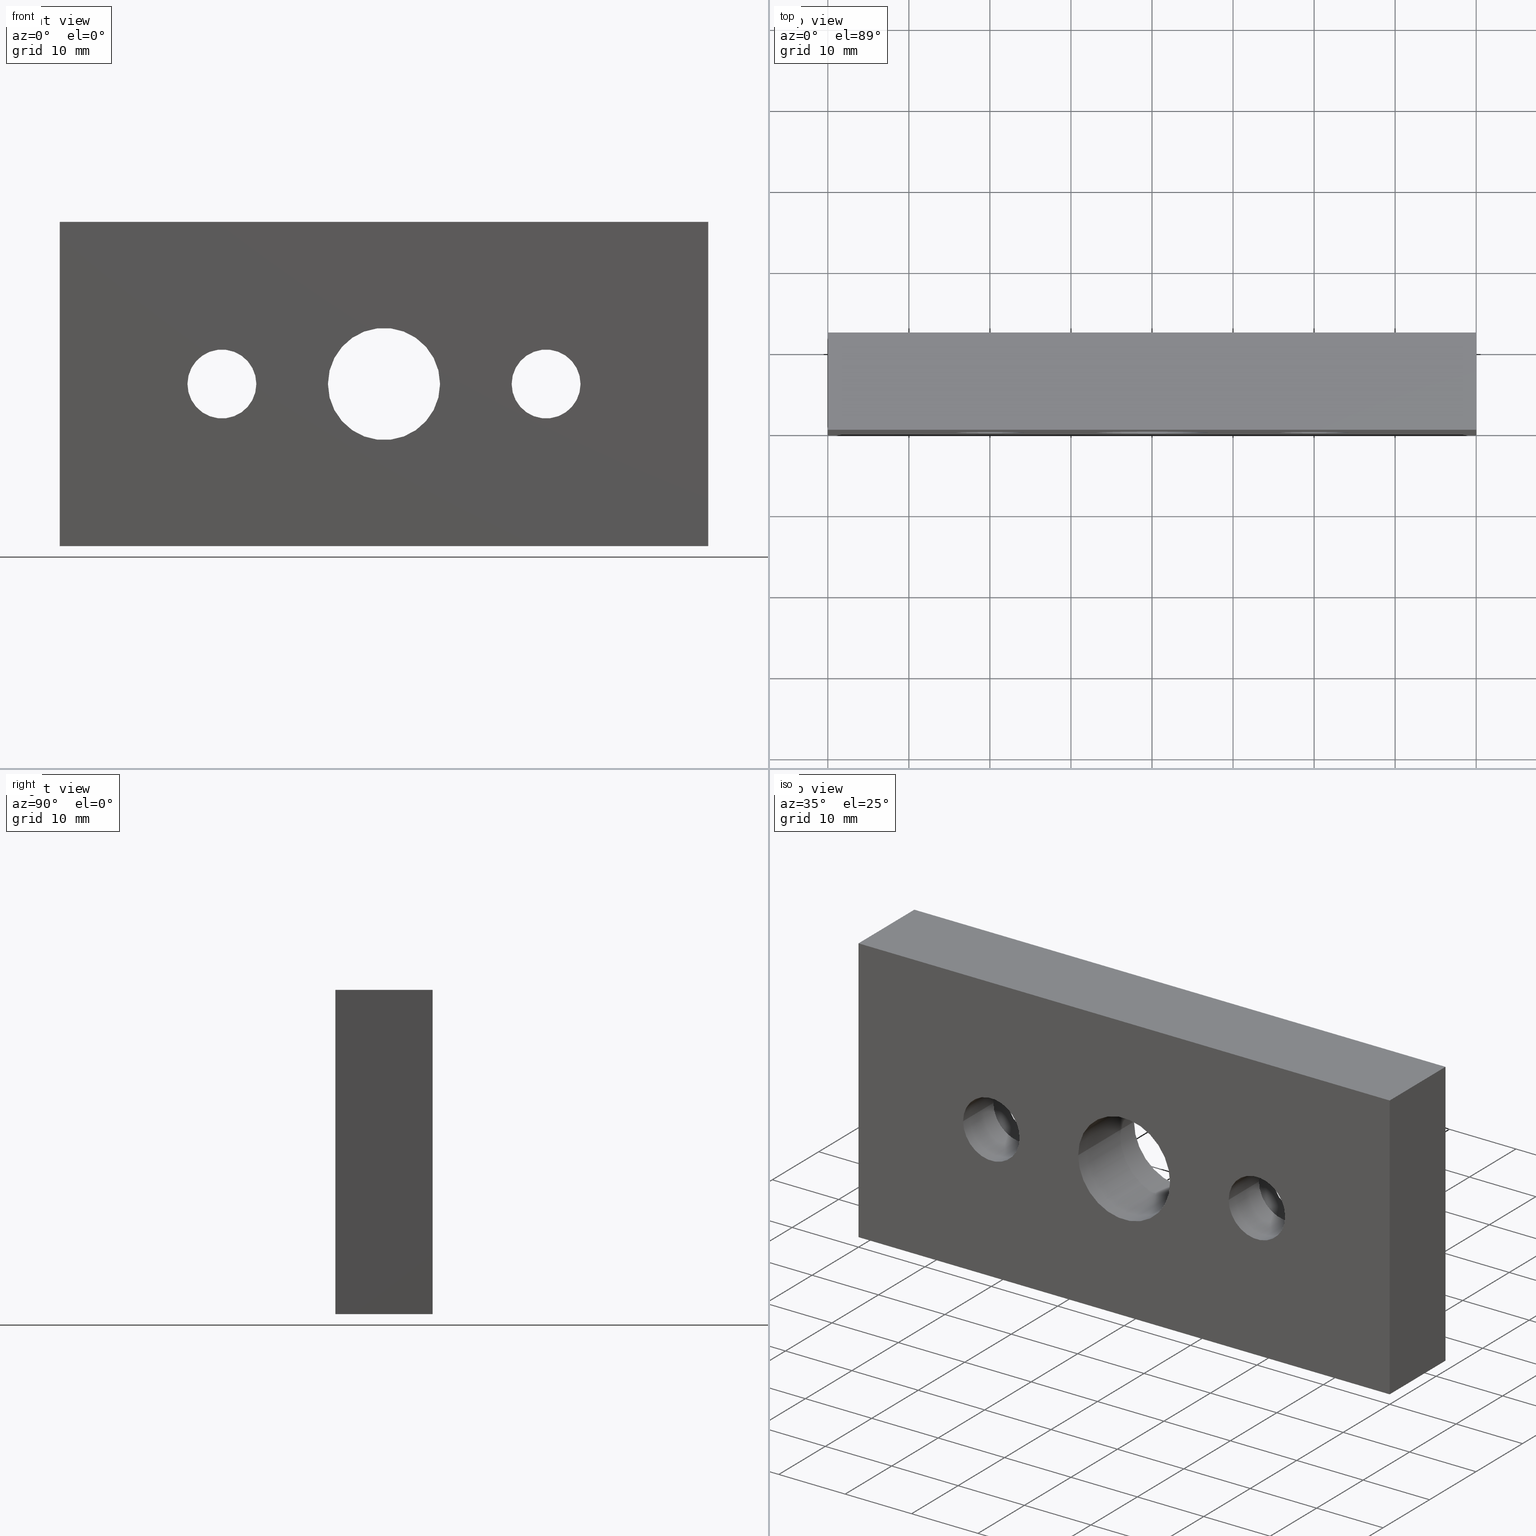
[diagram: canonical four-view strip — front | top / right | iso, engineering-drawing reading convention]
A machine part, canonical four-view strip (front | top / right | iso — engineering-drawing reading convention). The complete STEP part file that produces these views, byte-faithful:
ISO-10303-21;
HEADER;
/* Generated by software containing ST-Developer
 * from STEP Tools, Inc. (www.steptools.com) 
 */

FILE_DESCRIPTION(
/* description */ ('PIASTRA 40x80 SP.12 ALL. '),
/* implementation_level */ '2;1');

FILE_NAME(
/* name */ 
'Q:\\Catalogo\\2_Accessori Dierre\\Per Download Web e catalogo cartace
o\\CATALOGO PIEDI E SOSTEGNI\\PAGINA 46\\DPSXX0001716.stp',
/* time_stamp */ '2019-06-07T18:50:04+02:00',
/* author */ ('fzagni'),
/* organization */ (''),
/* preprocessor_version */ 'ST-DEVELOPER v17.2',
/* originating_system */ 'Autodesk Inventor 2019',
/* authorisation */ '');

FILE_SCHEMA (('AUTOMOTIVE_DESIGN { 1 0 10303 214 3 1 1 }'));
ENDSEC;

DATA;
#10=MECHANICAL_DESIGN_GEOMETRIC_PRESENTATION_REPRESENTATION('',(#13),#446);
#11=SHAPE_REPRESENTATION_RELATIONSHIP('SRR','None',#453,#12);
#12=ADVANCED_BREP_SHAPE_REPRESENTATION('',(#14),#445);
#13=STYLED_ITEM('',(#462),#14);
#14=MANIFOLD_SOLID_BREP('Solido1',#251);
#15=LINE('',#387,#32);
#16=LINE('',#390,#33);
#17=LINE('',#404,#34);
#18=LINE('',#407,#35);
#19=LINE('',#415,#36);
#20=LINE('',#420,#37);
#21=LINE('',#422,#38);
#22=LINE('',#424,#39);
#23=LINE('',#425,#40);
#24=LINE('',#428,#41);
#25=LINE('',#430,#42);
#26=LINE('',#431,#43);
#27=LINE('',#434,#44);
#28=LINE('',#436,#45);
#29=LINE('',#437,#46);
#30=LINE('',#439,#47);
#31=LINE('',#440,#48);
#32=VECTOR('',#315,6.75);
#33=VECTOR('',#318,4.25);
#34=VECTOR('',#335,6.75);
#35=VECTOR('',#338,4.25);
#36=VECTOR('',#347,6.9175);
#37=VECTOR('',#352,10.);
#38=VECTOR('',#353,10.);
#39=VECTOR('',#354,10.);
#40=VECTOR('',#355,10.);
#41=VECTOR('',#358,10.);
#42=VECTOR('',#359,10.);
#43=VECTOR('',#360,10.);
#44=VECTOR('',#363,10.);
#45=VECTOR('',#364,10.);
#46=VECTOR('',#365,10.);
#47=VECTOR('',#368,10.);
#48=VECTOR('',#369,10.);
#49=CYLINDRICAL_SURFACE('',#275,6.75);
#50=CYLINDRICAL_SURFACE('',#278,4.25);
#51=CYLINDRICAL_SURFACE('',#284,6.75);
#52=CYLINDRICAL_SURFACE('',#287,4.25);
#53=CYLINDRICAL_SURFACE('',#289,6.9175);
#54=FACE_BOUND('',#76,.T.);
#55=FACE_BOUND('',#80,.T.);
#56=FACE_BOUND('',#89,.T.);
#57=FACE_BOUND('',#90,.T.);
#58=FACE_BOUND('',#91,.T.);
#59=FACE_BOUND('',#93,.T.);
#60=FACE_BOUND('',#94,.T.);
#61=FACE_BOUND('',#95,.T.);
#62=FACE_OUTER_BOUND('',#75,.T.);
#63=FACE_OUTER_BOUND('',#77,.T.);
#64=FACE_OUTER_BOUND('',#78,.T.);
#65=FACE_OUTER_BOUND('',#79,.T.);
#66=FACE_OUTER_BOUND('',#81,.T.);
#67=FACE_OUTER_BOUND('',#82,.T.);
#68=FACE_OUTER_BOUND('',#83,.T.);
#69=FACE_OUTER_BOUND('',#84,.T.);
#70=FACE_OUTER_BOUND('',#85,.T.);
#71=FACE_OUTER_BOUND('',#86,.T.);
#72=FACE_OUTER_BOUND('',#87,.T.);
#73=FACE_OUTER_BOUND('',#88,.T.);
#74=FACE_OUTER_BOUND('',#92,.T.);
#75=EDGE_LOOP('',(#166,#167));
#76=EDGE_LOOP('',(#168));
#77=EDGE_LOOP('',(#169,#170,#171,#172,#173,#174));
#78=EDGE_LOOP('',(#175,#176,#177,#178));
#79=EDGE_LOOP('',(#179,#180));
#80=EDGE_LOOP('',(#181));
#81=EDGE_LOOP('',(#182,#183,#184,#185,#186,#187));
#82=EDGE_LOOP('',(#188,#189,#190,#191));
#83=EDGE_LOOP('',(#192,#193,#194,#195,#196));
#84=EDGE_LOOP('',(#197,#198,#199,#200));
#85=EDGE_LOOP('',(#201,#202,#203,#204));
#86=EDGE_LOOP('',(#205,#206,#207,#208));
#87=EDGE_LOOP('',(#209,#210,#211,#212));
#88=EDGE_LOOP('',(#213,#214,#215,#216));
#89=EDGE_LOOP('',(#217));
#90=EDGE_LOOP('',(#218));
#91=EDGE_LOOP('',(#219));
#92=EDGE_LOOP('',(#220,#221,#222,#223));
#93=EDGE_LOOP('',(#224,#225));
#94=EDGE_LOOP('',(#226,#227));
#95=EDGE_LOOP('',(#228,#229));
#96=CIRCLE('',#272,6.75);
#97=CIRCLE('',#273,6.75);
#98=CIRCLE('',#274,4.25);
#99=CIRCLE('',#276,6.75);
#100=CIRCLE('',#277,6.75);
#101=CIRCLE('',#279,4.25);
#102=CIRCLE('',#281,6.75);
#103=CIRCLE('',#282,6.75);
#104=CIRCLE('',#283,4.25);
#105=CIRCLE('',#285,6.75);
#106=CIRCLE('',#286,6.75);
#107=CIRCLE('',#288,4.25);
#108=CIRCLE('',#290,6.9175);
#109=CIRCLE('',#291,6.9175);
#110=CIRCLE('',#292,6.9175);
#111=VERTEX_POINT('',#376);
#112=VERTEX_POINT('',#377);
#113=VERTEX_POINT('',#380);
#114=VERTEX_POINT('',#383);
#115=VERTEX_POINT('',#384);
#116=VERTEX_POINT('',#389);
#117=VERTEX_POINT('',#393);
#118=VERTEX_POINT('',#394);
#119=VERTEX_POINT('',#397);
#120=VERTEX_POINT('',#400);
#121=VERTEX_POINT('',#401);
#122=VERTEX_POINT('',#406);
#123=VERTEX_POINT('',#410);
#124=VERTEX_POINT('',#411);
#125=VERTEX_POINT('',#414);
#126=VERTEX_POINT('',#418);
#127=VERTEX_POINT('',#419);
#128=VERTEX_POINT('',#421);
#129=VERTEX_POINT('',#423);
#130=VERTEX_POINT('',#427);
#131=VERTEX_POINT('',#429);
#132=VERTEX_POINT('',#433);
#133=VERTEX_POINT('',#435);
#134=EDGE_CURVE('',#111,#112,#96,.T.);
#135=EDGE_CURVE('',#112,#111,#97,.T.);
#136=EDGE_CURVE('',#113,#113,#98,.T.);
#137=EDGE_CURVE('',#114,#115,#99,.T.);
#138=EDGE_CURVE('',#115,#114,#100,.T.);
#139=EDGE_CURVE('',#115,#112,#15,.T.);
#140=EDGE_CURVE('',#113,#116,#16,.T.);
#141=EDGE_CURVE('',#116,#116,#101,.T.);
#142=EDGE_CURVE('',#117,#118,#102,.T.);
#143=EDGE_CURVE('',#118,#117,#103,.T.);
#144=EDGE_CURVE('',#119,#119,#104,.T.);
#145=EDGE_CURVE('',#120,#121,#105,.T.);
#146=EDGE_CURVE('',#121,#120,#106,.T.);
#147=EDGE_CURVE('',#121,#118,#17,.T.);
#148=EDGE_CURVE('',#119,#122,#18,.T.);
#149=EDGE_CURVE('',#122,#122,#107,.T.);
#150=EDGE_CURVE('',#123,#124,#108,.T.);
#151=EDGE_CURVE('',#124,#123,#109,.T.);
#152=EDGE_CURVE('',#124,#125,#19,.T.);
#153=EDGE_CURVE('',#125,#125,#110,.T.);
#154=EDGE_CURVE('',#126,#127,#20,.T.);
#155=EDGE_CURVE('',#126,#128,#21,.T.);
#156=EDGE_CURVE('',#129,#128,#22,.T.);
#157=EDGE_CURVE('',#127,#129,#23,.T.);
#158=EDGE_CURVE('',#127,#130,#24,.T.);
#159=EDGE_CURVE('',#131,#129,#25,.T.);
#160=EDGE_CURVE('',#130,#131,#26,.T.);
#161=EDGE_CURVE('',#130,#132,#27,.T.);
#162=EDGE_CURVE('',#133,#131,#28,.T.);
#163=EDGE_CURVE('',#132,#133,#29,.T.);
#164=EDGE_CURVE('',#132,#126,#30,.T.);
#165=EDGE_CURVE('',#128,#133,#31,.T.);
#166=ORIENTED_EDGE('',*,*,#134,.T.);
#167=ORIENTED_EDGE('',*,*,#135,.T.);
#168=ORIENTED_EDGE('',*,*,#136,.F.);
#169=ORIENTED_EDGE('',*,*,#137,.F.);
#170=ORIENTED_EDGE('',*,*,#138,.F.);
#171=ORIENTED_EDGE('',*,*,#139,.T.);
#172=ORIENTED_EDGE('',*,*,#134,.F.);
#173=ORIENTED_EDGE('',*,*,#135,.F.);
#174=ORIENTED_EDGE('',*,*,#139,.F.);
#175=ORIENTED_EDGE('',*,*,#136,.T.);
#176=ORIENTED_EDGE('',*,*,#140,.T.);
#177=ORIENTED_EDGE('',*,*,#141,.F.);
#178=ORIENTED_EDGE('',*,*,#140,.F.);
#179=ORIENTED_EDGE('',*,*,#142,.T.);
#180=ORIENTED_EDGE('',*,*,#143,.T.);
#181=ORIENTED_EDGE('',*,*,#144,.F.);
#182=ORIENTED_EDGE('',*,*,#145,.F.);
#183=ORIENTED_EDGE('',*,*,#146,.F.);
#184=ORIENTED_EDGE('',*,*,#147,.T.);
#185=ORIENTED_EDGE('',*,*,#142,.F.);
#186=ORIENTED_EDGE('',*,*,#143,.F.);
#187=ORIENTED_EDGE('',*,*,#147,.F.);
#188=ORIENTED_EDGE('',*,*,#144,.T.);
#189=ORIENTED_EDGE('',*,*,#148,.T.);
#190=ORIENTED_EDGE('',*,*,#149,.F.);
#191=ORIENTED_EDGE('',*,*,#148,.F.);
#192=ORIENTED_EDGE('',*,*,#150,.F.);
#193=ORIENTED_EDGE('',*,*,#151,.F.);
#194=ORIENTED_EDGE('',*,*,#152,.T.);
#195=ORIENTED_EDGE('',*,*,#153,.F.);
#196=ORIENTED_EDGE('',*,*,#152,.F.);
#197=ORIENTED_EDGE('',*,*,#154,.F.);
#198=ORIENTED_EDGE('',*,*,#155,.T.);
#199=ORIENTED_EDGE('',*,*,#156,.F.);
#200=ORIENTED_EDGE('',*,*,#157,.F.);
#201=ORIENTED_EDGE('',*,*,#158,.F.);
#202=ORIENTED_EDGE('',*,*,#157,.T.);
#203=ORIENTED_EDGE('',*,*,#159,.F.);
#204=ORIENTED_EDGE('',*,*,#160,.F.);
#205=ORIENTED_EDGE('',*,*,#161,.F.);
#206=ORIENTED_EDGE('',*,*,#160,.T.);
#207=ORIENTED_EDGE('',*,*,#162,.F.);
#208=ORIENTED_EDGE('',*,*,#163,.F.);
#209=ORIENTED_EDGE('',*,*,#164,.F.);
#210=ORIENTED_EDGE('',*,*,#163,.T.);
#211=ORIENTED_EDGE('',*,*,#165,.F.);
#212=ORIENTED_EDGE('',*,*,#155,.F.);
#213=ORIENTED_EDGE('',*,*,#164,.T.);
#214=ORIENTED_EDGE('',*,*,#154,.T.);
#215=ORIENTED_EDGE('',*,*,#158,.T.);
#216=ORIENTED_EDGE('',*,*,#161,.T.);
#217=ORIENTED_EDGE('',*,*,#141,.T.);
#218=ORIENTED_EDGE('',*,*,#149,.T.);
#219=ORIENTED_EDGE('',*,*,#153,.T.);
#220=ORIENTED_EDGE('',*,*,#165,.T.);
#221=ORIENTED_EDGE('',*,*,#162,.T.);
#222=ORIENTED_EDGE('',*,*,#159,.T.);
#223=ORIENTED_EDGE('',*,*,#156,.T.);
#224=ORIENTED_EDGE('',*,*,#137,.T.);
#225=ORIENTED_EDGE('',*,*,#138,.T.);
#226=ORIENTED_EDGE('',*,*,#145,.T.);
#227=ORIENTED_EDGE('',*,*,#146,.T.);
#228=ORIENTED_EDGE('',*,*,#150,.T.);
#229=ORIENTED_EDGE('',*,*,#151,.T.);
#230=PLANE('',#271);
#231=PLANE('',#280);
#232=PLANE('',#293);
#233=PLANE('',#294);
#234=PLANE('',#295);
#235=PLANE('',#296);
#236=PLANE('',#297);
#237=PLANE('',#298);
#238=ADVANCED_FACE('',(#62,#54),#230,.T.);
#239=ADVANCED_FACE('',(#63),#49,.F.);
#240=ADVANCED_FACE('',(#64),#50,.F.);
#241=ADVANCED_FACE('',(#65,#55),#231,.T.);
#242=ADVANCED_FACE('',(#66),#51,.F.);
#243=ADVANCED_FACE('',(#67),#52,.F.);
#244=ADVANCED_FACE('',(#68),#53,.F.);
#245=ADVANCED_FACE('',(#69),#232,.T.);
#246=ADVANCED_FACE('',(#70),#233,.T.);
#247=ADVANCED_FACE('',(#71),#234,.T.);
#248=ADVANCED_FACE('',(#72),#235,.T.);
#249=ADVANCED_FACE('',(#73,#56,#57,#58),#236,.F.);
#250=ADVANCED_FACE('',(#74,#59,#60,#61),#237,.T.);
#251=CLOSED_SHELL('',(#238,#239,#240,#241,#242,#243,#244,#245,#246,#247,
#248,#249,#250));
#252=DERIVED_UNIT_ELEMENT(#254,1.);
#253=DERIVED_UNIT_ELEMENT(#448,3.);
#254=(
MASS_UNIT()
NAMED_UNIT(*)
SI_UNIT($,.GRAM.)
);
#255=DERIVED_UNIT((#252,#253));
#256=MEASURE_REPRESENTATION_ITEM('density measure',
POSITIVE_RATIO_MEASURE(2.7),#255);
#257=PROPERTY_DEFINITION_REPRESENTATION(#262,#259);
#258=PROPERTY_DEFINITION_REPRESENTATION(#263,#260);
#259=REPRESENTATION('material name',(#261),#445);
#260=REPRESENTATION('density',(#256),#445);
#261=DESCRIPTIVE_REPRESENTATION_ITEM('Alluminio 6060','Alluminio 6060');
#262=PROPERTY_DEFINITION('material property','material name',#455);
#263=PROPERTY_DEFINITION('material property','density of part',#455);
#264=DATE_TIME_ROLE('creation_date');
#265=APPLIED_DATE_AND_TIME_ASSIGNMENT(#266,#264,(#455));
#266=DATE_AND_TIME(#267,#268);
#267=CALENDAR_DATE(2014,7,8);
#268=LOCAL_TIME(8,52,1.,#269);
#269=COORDINATED_UNIVERSAL_TIME_OFFSET(0,0,.BEHIND.);
#270=AXIS2_PLACEMENT_3D('placement',#374,#299,#300);
#271=AXIS2_PLACEMENT_3D('',#375,#301,#302);
#272=AXIS2_PLACEMENT_3D('',#378,#303,#304);
#273=AXIS2_PLACEMENT_3D('',#379,#305,#306);
#274=AXIS2_PLACEMENT_3D('',#381,#307,#308);
#275=AXIS2_PLACEMENT_3D('',#382,#309,#310);
#276=AXIS2_PLACEMENT_3D('',#385,#311,#312);
#277=AXIS2_PLACEMENT_3D('',#386,#313,#314);
#278=AXIS2_PLACEMENT_3D('',#388,#316,#317);
#279=AXIS2_PLACEMENT_3D('',#391,#319,#320);
#280=AXIS2_PLACEMENT_3D('',#392,#321,#322);
#281=AXIS2_PLACEMENT_3D('',#395,#323,#324);
#282=AXIS2_PLACEMENT_3D('',#396,#325,#326);
#283=AXIS2_PLACEMENT_3D('',#398,#327,#328);
#284=AXIS2_PLACEMENT_3D('',#399,#329,#330);
#285=AXIS2_PLACEMENT_3D('',#402,#331,#332);
#286=AXIS2_PLACEMENT_3D('',#403,#333,#334);
#287=AXIS2_PLACEMENT_3D('',#405,#336,#337);
#288=AXIS2_PLACEMENT_3D('',#408,#339,#340);
#289=AXIS2_PLACEMENT_3D('',#409,#341,#342);
#290=AXIS2_PLACEMENT_3D('',#412,#343,#344);
#291=AXIS2_PLACEMENT_3D('',#413,#345,#346);
#292=AXIS2_PLACEMENT_3D('',#416,#348,#349);
#293=AXIS2_PLACEMENT_3D('',#417,#350,#351);
#294=AXIS2_PLACEMENT_3D('',#426,#356,#357);
#295=AXIS2_PLACEMENT_3D('',#432,#361,#362);
#296=AXIS2_PLACEMENT_3D('',#438,#366,#367);
#297=AXIS2_PLACEMENT_3D('',#441,#370,#371);
#298=AXIS2_PLACEMENT_3D('',#442,#372,#373);
#299=DIRECTION('axis',(0.,0.,1.));
#300=DIRECTION('refdir',(1.,0.,0.));
#301=DIRECTION('center_axis',(0.,1.,0.));
#302=DIRECTION('ref_axis',(1.,0.,0.));
#303=DIRECTION('center_axis',(0.,1.,0.));
#304=DIRECTION('ref_axis',(1.,0.,0.));
#305=DIRECTION('center_axis',(0.,1.,0.));
#306=DIRECTION('ref_axis',(1.,0.,0.));
#307=DIRECTION('center_axis',(0.,1.,0.));
#308=DIRECTION('ref_axis',(1.,0.,0.));
#309=DIRECTION('center_axis',(0.,1.,0.));
#310=DIRECTION('ref_axis',(1.,0.,0.));
#311=DIRECTION('center_axis',(0.,-1.,0.));
#312=DIRECTION('ref_axis',(1.,0.,0.));
#313=DIRECTION('center_axis',(0.,-1.,0.));
#314=DIRECTION('ref_axis',(1.,0.,0.));
#315=DIRECTION('',(0.,-1.,0.));
#316=DIRECTION('center_axis',(0.,1.,0.));
#317=DIRECTION('ref_axis',(1.,0.,0.));
#318=DIRECTION('',(0.,-1.,0.));
#319=DIRECTION('center_axis',(0.,1.,0.));
#320=DIRECTION('ref_axis',(1.,0.,0.));
#321=DIRECTION('center_axis',(0.,1.,0.));
#322=DIRECTION('ref_axis',(1.,0.,0.));
#323=DIRECTION('center_axis',(0.,1.,0.));
#324=DIRECTION('ref_axis',(1.,0.,0.));
#325=DIRECTION('center_axis',(0.,1.,0.));
#326=DIRECTION('ref_axis',(1.,0.,0.));
#327=DIRECTION('center_axis',(0.,1.,0.));
#328=DIRECTION('ref_axis',(1.,0.,0.));
#329=DIRECTION('center_axis',(0.,1.,0.));
#330=DIRECTION('ref_axis',(1.,0.,0.));
#331=DIRECTION('center_axis',(0.,-1.,0.));
#332=DIRECTION('ref_axis',(1.,0.,0.));
#333=DIRECTION('center_axis',(0.,-1.,0.));
#334=DIRECTION('ref_axis',(1.,0.,0.));
#335=DIRECTION('',(0.,-1.,0.));
#336=DIRECTION('center_axis',(0.,1.,0.));
#337=DIRECTION('ref_axis',(1.,0.,0.));
#338=DIRECTION('',(0.,-1.,0.));
#339=DIRECTION('center_axis',(0.,1.,0.));
#340=DIRECTION('ref_axis',(1.,0.,0.));
#341=DIRECTION('center_axis',(0.,1.,0.));
#342=DIRECTION('ref_axis',(1.,0.,0.));
#343=DIRECTION('center_axis',(0.,-1.,0.));
#344=DIRECTION('ref_axis',(1.,0.,0.));
#345=DIRECTION('center_axis',(0.,-1.,0.));
#346=DIRECTION('ref_axis',(1.,0.,0.));
#347=DIRECTION('',(0.,-1.,0.));
#348=DIRECTION('center_axis',(0.,1.,0.));
#349=DIRECTION('ref_axis',(1.,0.,0.));
#350=DIRECTION('center_axis',(-1.,0.,0.));
#351=DIRECTION('ref_axis',(0.,0.,1.));
#352=DIRECTION('',(0.,0.,-1.));
#353=DIRECTION('',(0.,1.,0.));
#354=DIRECTION('',(0.,0.,1.));
#355=DIRECTION('',(0.,1.,0.));
#356=DIRECTION('center_axis',(0.,0.,-1.));
#357=DIRECTION('ref_axis',(-1.,0.,0.));
#358=DIRECTION('',(1.,0.,0.));
#359=DIRECTION('',(-1.,0.,0.));
#360=DIRECTION('',(0.,1.,0.));
#361=DIRECTION('center_axis',(1.,0.,0.));
#362=DIRECTION('ref_axis',(0.,0.,-1.));
#363=DIRECTION('',(0.,0.,1.));
#364=DIRECTION('',(0.,0.,-1.));
#365=DIRECTION('',(0.,1.,0.));
#366=DIRECTION('center_axis',(0.,0.,1.));
#367=DIRECTION('ref_axis',(1.,0.,0.));
#368=DIRECTION('',(-1.,0.,0.));
#369=DIRECTION('',(1.,0.,0.));
#370=DIRECTION('center_axis',(0.,1.,0.));
#371=DIRECTION('ref_axis',(0.,0.,1.));
#372=DIRECTION('center_axis',(0.,1.,0.));
#373=DIRECTION('ref_axis',(0.,0.,1.));
#374=CARTESIAN_POINT('',(0.,0.,0.));
#375=CARTESIAN_POINT('Origin',(-20.,6.5,0.));
#376=CARTESIAN_POINT('',(-13.25,6.5,0.));
#377=CARTESIAN_POINT('',(-26.75,6.5,8.26636589424463E-16));
#378=CARTESIAN_POINT('Origin',(-20.,6.5,0.));
#379=CARTESIAN_POINT('Origin',(-20.,6.5,0.));
#380=CARTESIAN_POINT('',(-24.25,6.49999999999999,5.20474889637625E-16));
#381=CARTESIAN_POINT('Origin',(-20.,6.49999999999999,0.));
#382=CARTESIAN_POINT('Origin',(-20.,9.25,0.));
#383=CARTESIAN_POINT('',(-13.25,12.,0.));
#384=CARTESIAN_POINT('',(-26.75,12.,8.26636589424463E-16));
#385=CARTESIAN_POINT('Origin',(-20.,12.,0.));
#386=CARTESIAN_POINT('Origin',(-20.,12.,0.));
#387=CARTESIAN_POINT('',(-26.75,9.25,8.26636589424463E-16));
#388=CARTESIAN_POINT('Origin',(-20.,-78.2441133814278,0.));
#389=CARTESIAN_POINT('',(-24.25,0.,5.20474889637625E-16));
#390=CARTESIAN_POINT('',(-24.25,-78.2441133814278,5.20474889637625E-16));
#391=CARTESIAN_POINT('Origin',(-20.,0.,0.));
#392=CARTESIAN_POINT('Origin',(20.,6.5,0.));
#393=CARTESIAN_POINT('',(26.75,6.5,0.));
#394=CARTESIAN_POINT('',(13.25,6.5,8.26636589424463E-16));
#395=CARTESIAN_POINT('Origin',(20.,6.5,0.));
#396=CARTESIAN_POINT('Origin',(20.,6.5,0.));
#397=CARTESIAN_POINT('',(15.75,6.49999999999999,5.20474889637625E-16));
#398=CARTESIAN_POINT('Origin',(20.,6.49999999999999,0.));
#399=CARTESIAN_POINT('Origin',(20.,9.25,0.));
#400=CARTESIAN_POINT('',(26.75,12.,0.));
#401=CARTESIAN_POINT('',(13.25,12.,8.26636589424463E-16));
#402=CARTESIAN_POINT('Origin',(20.,12.,0.));
#403=CARTESIAN_POINT('Origin',(20.,12.,0.));
#404=CARTESIAN_POINT('',(13.25,9.25,8.26636589424463E-16));
#405=CARTESIAN_POINT('Origin',(20.,-78.2441133814278,0.));
#406=CARTESIAN_POINT('',(15.75,0.,5.20474889637625E-16));
#407=CARTESIAN_POINT('',(15.75,-78.2441133814278,5.20474889637625E-16));
#408=CARTESIAN_POINT('Origin',(20.,0.,0.));
#409=CARTESIAN_POINT('Origin',(0.,-78.2441133814278,0.));
#410=CARTESIAN_POINT('',(6.9175,12.,0.));
#411=CARTESIAN_POINT('',(-6.9175,12.,8.47149423310182E-16));
#412=CARTESIAN_POINT('Origin',(0.,12.,0.));
#413=CARTESIAN_POINT('Origin',(0.,12.,0.));
#414=CARTESIAN_POINT('',(-6.9175,0.,8.47149423310182E-16));
#415=CARTESIAN_POINT('',(-6.9175,-78.2441133814278,8.47149423310182E-16));
#416=CARTESIAN_POINT('Origin',(0.,0.,0.));
#417=CARTESIAN_POINT('Origin',(-40.,0.,-20.));
#418=CARTESIAN_POINT('',(-40.,0.,20.));
#419=CARTESIAN_POINT('',(-40.,0.,-20.));
#420=CARTESIAN_POINT('',(-40.,0.,20.));
#421=CARTESIAN_POINT('',(-40.,12.,20.));
#422=CARTESIAN_POINT('',(-40.,0.,20.));
#423=CARTESIAN_POINT('',(-40.,12.,-20.));
#424=CARTESIAN_POINT('',(-40.,12.,20.));
#425=CARTESIAN_POINT('',(-40.,0.,-20.));
#426=CARTESIAN_POINT('Origin',(40.,0.,-20.));
#427=CARTESIAN_POINT('',(40.,0.,-20.));
#428=CARTESIAN_POINT('',(-40.,0.,-20.));
#429=CARTESIAN_POINT('',(40.,12.,-20.));
#430=CARTESIAN_POINT('',(-40.,12.,-20.));
#431=CARTESIAN_POINT('',(40.,0.,-20.));
#432=CARTESIAN_POINT('Origin',(40.,0.,20.));
#433=CARTESIAN_POINT('',(40.,0.,20.));
#434=CARTESIAN_POINT('',(40.,0.,-20.));
#435=CARTESIAN_POINT('',(40.,12.,20.));
#436=CARTESIAN_POINT('',(40.,12.,-20.));
#437=CARTESIAN_POINT('',(40.,0.,20.));
#438=CARTESIAN_POINT('Origin',(-40.,0.,20.));
#439=CARTESIAN_POINT('',(40.,0.,20.));
#440=CARTESIAN_POINT('',(40.,12.,20.));
#441=CARTESIAN_POINT('Origin',(0.,0.,0.));
#442=CARTESIAN_POINT('Origin',(0.,12.,0.));
#443=UNCERTAINTY_MEASURE_WITH_UNIT(LENGTH_MEASURE(0.01),#447,
'DISTANCE_ACCURACY_VALUE',
'Maximum model space distance between geometric entities at asserted c
onnectivities');
#444=UNCERTAINTY_MEASURE_WITH_UNIT(LENGTH_MEASURE(0.01),#447,
'DISTANCE_ACCURACY_VALUE',
'Maximum model space distance between geometric entities at asserted c
onnectivities');
#445=(
GEOMETRIC_REPRESENTATION_CONTEXT(3)
GLOBAL_UNCERTAINTY_ASSIGNED_CONTEXT((#443))
GLOBAL_UNIT_ASSIGNED_CONTEXT((#447,#449,#450))
REPRESENTATION_CONTEXT('','3D')
);
#446=(
GEOMETRIC_REPRESENTATION_CONTEXT(3)
GLOBAL_UNCERTAINTY_ASSIGNED_CONTEXT((#444))
GLOBAL_UNIT_ASSIGNED_CONTEXT((#447,#449,#450))
REPRESENTATION_CONTEXT('','3D')
);
#447=(
LENGTH_UNIT()
NAMED_UNIT(*)
SI_UNIT(.MILLI.,.METRE.)
);
#448=(
LENGTH_UNIT()
NAMED_UNIT(*)
SI_UNIT(.CENTI.,.METRE.)
);
#449=(
NAMED_UNIT(*)
PLANE_ANGLE_UNIT()
SI_UNIT($,.RADIAN.)
);
#450=(
NAMED_UNIT(*)
SI_UNIT($,.STERADIAN.)
SOLID_ANGLE_UNIT()
);
#451=SHAPE_DEFINITION_REPRESENTATION(#452,#453);
#452=PRODUCT_DEFINITION_SHAPE('',$,#455);
#453=SHAPE_REPRESENTATION('',(#270),#445);
#454=PRODUCT_DEFINITION_CONTEXT('part definition',#459,'design');
#455=PRODUCT_DEFINITION('DPSXX0001716','DPSXX0001716',#456,#454);
#456=PRODUCT_DEFINITION_FORMATION('A',$,#461);
#457=PRODUCT_RELATED_PRODUCT_CATEGORY('DPSXX0001716','DPSXX0001716',(#461));
#458=APPLICATION_PROTOCOL_DEFINITION('international standard',
'automotive_design',2009,#459);
#459=APPLICATION_CONTEXT(
'Core Data for Automotive Mechanical Design Process');
#460=PRODUCT_CONTEXT('part definition',#459,'mechanical');
#461=PRODUCT('DPSXX0001716','DPSXX0001716','PIASTRA 40x80 SP.12 ALL. ',
(#460));
#462=PRESENTATION_STYLE_ASSIGNMENT((#463));
#463=SURFACE_STYLE_USAGE(.BOTH.,#466);
#464=SURFACE_STYLE_RENDERING_WITH_PROPERTIES($,#470,(#465));
#465=SURFACE_STYLE_TRANSPARENT(1.);
#466=SURFACE_SIDE_STYLE('',(#467,#464));
#467=SURFACE_STYLE_FILL_AREA(#468);
#468=FILL_AREA_STYLE('',(#469));
#469=FILL_AREA_STYLE_COLOUR('',#470);
#470=COLOUR_RGB('',0.956862745098039,0.956862745098039,0.956862745098039);
ENDSEC;
END-ISO-10303-21;
